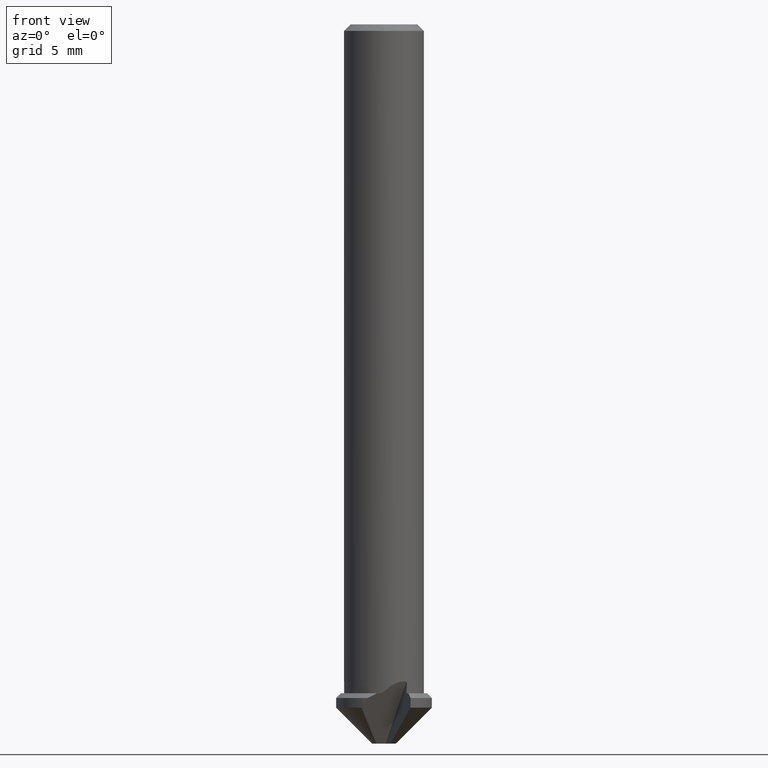
[diagram: clean part render]
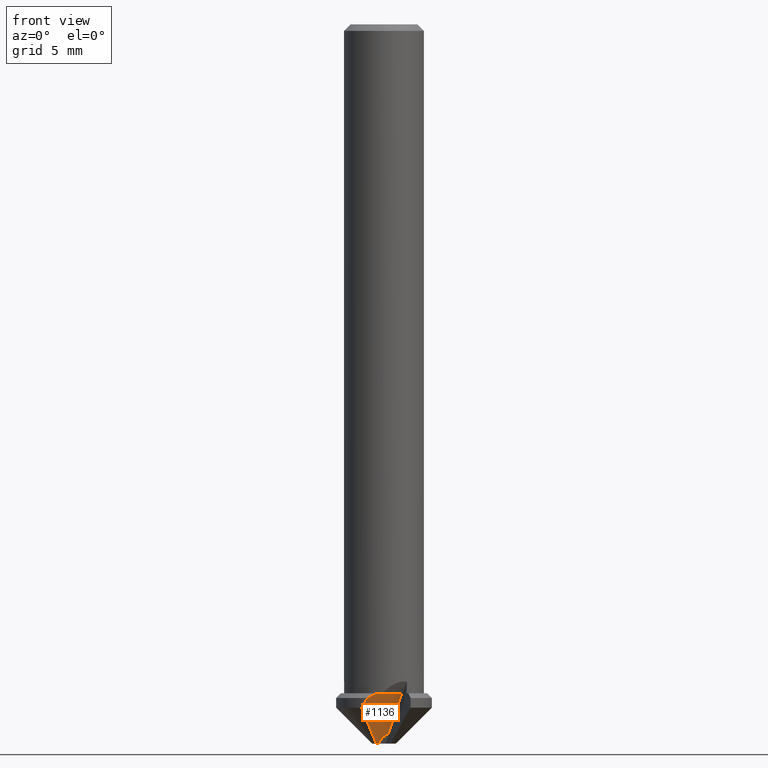
[diagram: same view with one face highlighted and labeled with its STEP entity id]
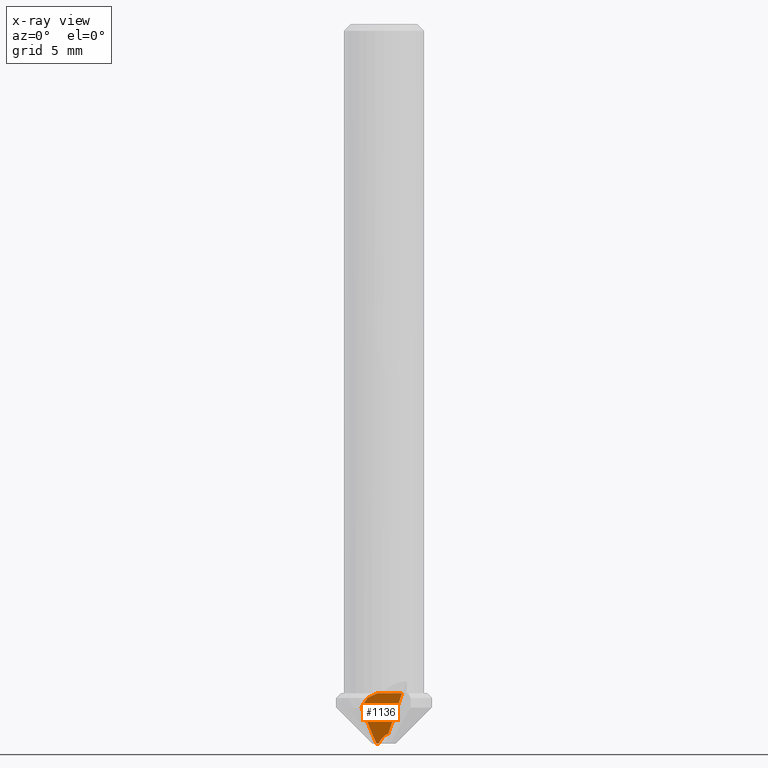
[diagram: x-ray of the same camera — body ghosted, the highlighted face saturated]
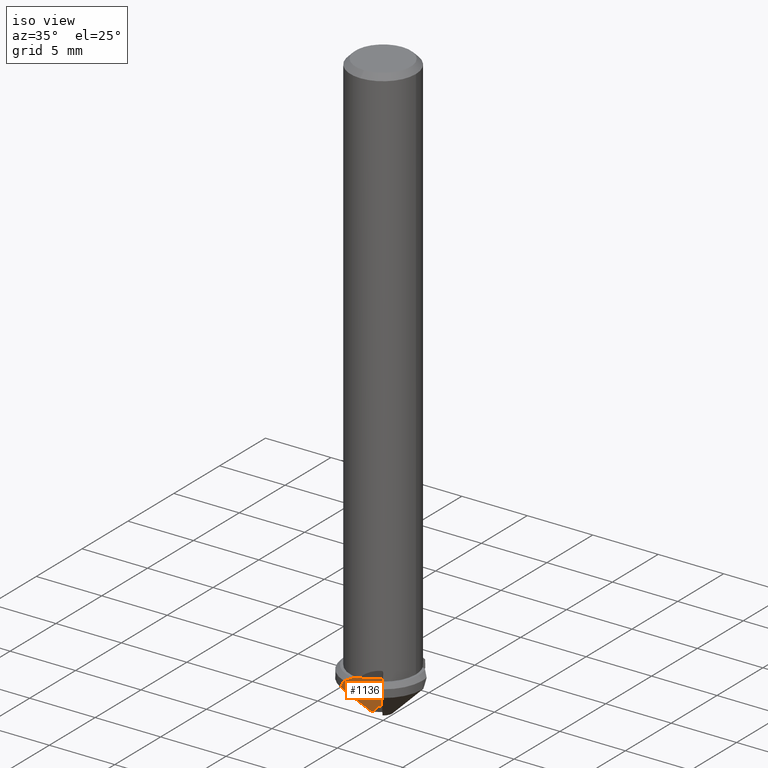
[diagram: same view with one face highlighted and labeled with its STEP entity id]
A machine part, front view. The second image highlights one B-rep face of the part: STEP entity #1136.
The next image is the same camera in x-ray: the body ghosted, the highlighted face saturated — about 0% of this face is hidden behind the body in this view.
A second angle (iso view) of the same face is appended — the face is thin or edge-on in the first view.
In plain terms, the highlighted planar face has unit normal (-0.4441, 0.7437, 0.4997).
Its self-contained STEP definition (entity closure, byte-faithful):
#536=EDGE_CURVE('',#786,#894,#1410,.T.);
#616=VERTEX_POINT('',#1499);
#638=VERTEX_POINT('',#1521);
#746=VERTEX_POINT('',#1643);
#786=VERTEX_POINT('',#1687);
#860=EDGE_CURVE('',#1108,#1102,#1767,.T.);
#894=VERTEX_POINT('',#1804);
#926=EDGE_CURVE('',#616,#1108,#1836,.T.);
#1000=VERTEX_POINT('',#1917);
#1086=EDGE_CURVE('',#894,#638,#2011,.T.);
#1102=VERTEX_POINT('',#2028);
#1108=VERTEX_POINT('',#2034);
#1112=EDGE_CURVE('',#1168,#1000,#2038,.T.);
#1136=ADVANCED_FACE('',(#2064),#2065,.F.);
#1154=EDGE_CURVE('',#746,#616,#2084,.T.);
#1168=VERTEX_POINT('',#2100);
#1216=EDGE_CURVE('',#1102,#1168,#2153,.T.);
#1222=EDGE_CURVE('',#638,#746,#2159,.T.);
#1256=EDGE_CURVE('',#786,#1000,#2195,.T.);
#1410=ELLIPSE('',#2457,1.20073584576875,0.6);
#1499=CARTESIAN_POINT('',(-1.40686086937403,-2.64966837438653,-42.75));
#1521=CARTESIAN_POINT('',(-0.469682432186166,-0.578293535235945,-45.0));
#1643=CARTESIAN_POINT('',(-0.474250993421979,-0.581021510133889,-45.0));
#1687=CARTESIAN_POINT('',(0.270920144440435,-0.535352477659694,-44.4057318701355));
#1767=(B_SPLINE_CURVE(2,(#3306,#3307,#3308),.UNSPECIFIED.,.F.,.F.)B_SPLINE_CURVE_WITH_KNOTS((3,3),(0.0,0.660674624795349),.UNSPECIFIED.)RATIONAL_B_SPLINE_CURVE((1.0,1.00169448352187,1.0))BOUNDED_CURVE()REPRESENTATION_ITEM('')GEOMETRIC_REPRESENTATION_ITEM()CURVE());
#1804=CARTESIAN_POINT('',(-0.329596308848857,-0.501364411574265,-44.99));
#1836=ELLIPSE('',#3459,6.00367922884375,3.0);
#1917=CARTESIAN_POINT('',(1.12900714903635,-1.74016039870831,-41.85));
#2011=(B_SPLINE_CURVE(2,(#3717,#3718,#3719),.UNSPECIFIED.,.F.,.F.)B_SPLINE_CURVE_WITH_KNOTS((3,3),(0.0,2.05390842824059),.UNSPECIFIED.)RATIONAL_B_SPLINE_CURVE((1.0,3.72611473754677,1.0))BOUNDED_CURVE()REPRESENTATION_ITEM('')GEOMETRIC_REPRESENTATION_ITEM()CURVE());
#2028=CARTESIAN_POINT('',(-0.444873342192458,-2.67323543845403,-41.86));
#2034=CARTESIAN_POINT('',(-1.01944901666025,-2.8214754477809,-42.15));
#2038=LINE('',#3786,#3787);
#2064=FACE_OUTER_BOUND('',#3854,.T.);
#2065=PLANE('',#3855);
#2084=(B_SPLINE_CURVE(2,(#3882,#3883,#3884),.UNSPECIFIED.,.F.,.F.)B_SPLINE_CURVE_WITH_KNOTS((3,3),(0.0,3.19557728387752),.UNSPECIFIED.)RATIONAL_B_SPLINE_CURVE((1.0,1.2087914720769,1.0))BOUNDED_CURVE()REPRESENTATION_ITEM('')GEOMETRIC_REPRESENTATION_ITEM()CURVE());
#2100=CARTESIAN_POINT('',(-0.422689988078649,-2.66670830312917,-41.85));
#2153=(B_SPLINE_CURVE(2,(#4043,#4044,#4045),.UNSPECIFIED.,.F.,.F.)B_SPLINE_CURVE_WITH_KNOTS((3,3),(0.0,0.0251933624838392),.UNSPECIFIED.)RATIONAL_B_SPLINE_CURVE((1.0,1.0000027510867,1.0))BOUNDED_CURVE()REPRESENTATION_ITEM('')GEOMETRIC_REPRESENTATION_ITEM()CURVE());
#2159=LINE('',#4060,#4061);
#2195=LINE('',#4143,#4144);
#2457=AXIS2_PLACEMENT_3D('',#4344,#4345,#4346);
#3306=CARTESIAN_POINT('',(-1.01944901666025,-2.8214754477809,-42.15));
#3307=CARTESIAN_POINT('',(-0.720256333914441,-2.75386063261527,-41.9847382576289));
#3308=CARTESIAN_POINT('',(-0.444873342192458,-2.67323543845403,-41.86));
#3459=AXIS2_PLACEMENT_3D('',#4789,#4790,#4791);
#3717=CARTESIAN_POINT('',(1.00492064424621,0.316519349752464,-45.0212820071702));
#3718=CARTESIAN_POINT('',(0.1449632374194,-0.24277108546395,-44.9531264574469));
#3719=CARTESIAN_POINT('',(-0.755308413910355,-0.734546935107733,-45.0212820071702));
#3786=CARTESIAN_POINT('',(-4.69274114798236,-5.2164371512049,-41.85));
#3787=VECTOR('',#5030,1.0);
#3854=EDGE_LOOP('',(#5060,#5061,#5062,#5063,#5064,#5065,#5066,#5067,#5068));
#3855=AXIS2_PLACEMENT_3D('',#5069,#5070,#5071);
#3882=CARTESIAN_POINT('',(-0.474250993421979,-0.58102151013389,-45.0));
#3883=CARTESIAN_POINT('',(-0.686609014382778,-1.03364537559182,-44.5150730610229));
#3884=CARTESIAN_POINT('',(-1.40686086937403,-2.64966837438653,-42.75));
#4043=CARTESIAN_POINT('',(-0.444873342192458,-2.67323543845403,-41.86));
#4044=CARTESIAN_POINT('',(-0.433763932091276,-2.66998288338219,-41.8549678502269));
#4045=CARTESIAN_POINT('',(-0.422689988078648,-2.66670830312917,-41.85));
#4060=CARTESIAN_POINT('',(-5.29171408905355,-3.45762044759229,-45.0));
#4061=VECTOR('',#5194,1.0);
#4143=CARTESIAN_POINT('',(0.032592674811545,-0.200725777016934,-45.1155679431642));
#4144=VECTOR('',#5229,1.0);
#4344=CARTESIAN_POINT('',(0.0,0.0,-45.4432782267687));
#4345=DIRECTION('',(0.444080941659302,-0.74370588129578,-0.499693585491204));
#4346=DIRECTION('',(-0.256180817519519,0.429028050500298,-0.866202240021893));
#4789=CARTESIAN_POINT('',(0.0,0.0,-45.4432782267687));
#4790=DIRECTION('',(-0.444080941659302,0.74370588129578,0.499693585491204));
#4791=DIRECTION('',(-0.256180817519519,0.429028050500298,-0.866202240021893));
#5030=DIRECTION('',(0.858582265126656,0.512675817656715,-0.0));
#5060=ORIENTED_EDGE('',*,*,#536,.F.);
#5061=ORIENTED_EDGE('',*,*,#1256,.T.);
#5062=ORIENTED_EDGE('',*,*,#1112,.F.);
#5063=ORIENTED_EDGE('',*,*,#1216,.F.);
#5064=ORIENTED_EDGE('',*,*,#860,.F.);
#5065=ORIENTED_EDGE('',*,*,#926,.F.);
#5066=ORIENTED_EDGE('',*,*,#1154,.F.);
#5067=ORIENTED_EDGE('',*,*,#1222,.F.);
#5068=ORIENTED_EDGE('',*,*,#1086,.F.);
#5069=CARTESIAN_POINT('',(-10.0745009441026,-6.5157011884705,-44.6990793028196));
#5070=DIRECTION('',(-0.444080941659302,0.74370588129578,0.499693585491204));
#5071=DIRECTION('',(-0.847554741355271,-0.529557512112413,0.0349256606453176));
#5194=DIRECTION('',(-0.858582265126656,-0.512675817656715,-0.0));
#5229=DIRECTION('',(0.290590911181316,-0.408007847340439,0.865497844507676));